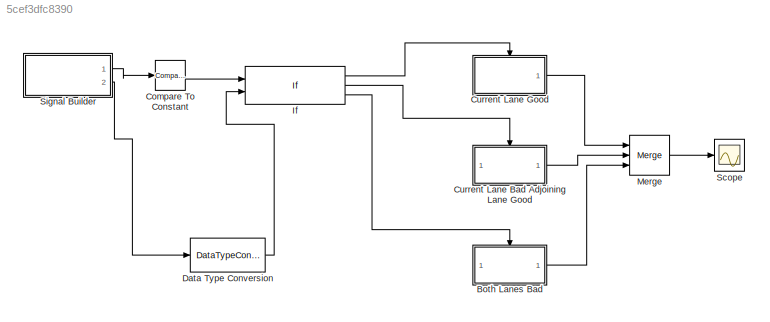
MODEL slx_5cef3dfc8390
KIND model
CONFIG AbsTol = auto
CONFIG EnableMultiTasking = off
CONFIG FixedStep = auto
CONFIG MaxStep = auto
CONFIG MinStep = auto
CONFIG RelTol = 1e-3
CONFIG SampleTimeConstraint = Unconstrained
CONFIG Solver = VariableStepAuto
CONFIG SolverName = VariableStepAuto
CONFIG StartTime = 0.0
CONFIG StopTime = 10.0
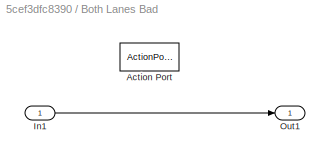
BLOCK [SubSystem] Both Lanes Bad
  Ports = [1, 1, 0, 0, 0, 0, 0, 1]
  RequestExecContextInheritance = off
  TreatAsAtomicUnit = on
  Variant = off
BLOCK [ActionPort] Both Lanes Bad/Action Port
  ActionType = else
BLOCK [Inport] Both Lanes Bad/In1
  IconDisplay = Port number
BLOCK [Outport] Both Lanes Bad/Out1
  IconDisplay = Port number
BLOCK [Reference] Compare To Constant  REF=simulink/Logic and Bit
Operations/Compare
To Constant
  Ports = [1, 1]
  SourceBlock = simulink/Logic and Bit\nOperations/Compare\nTo Constant
  SourceProductBaseCode = SL
  SourceProductName = Simulink
  SourceType = Compare To Constant
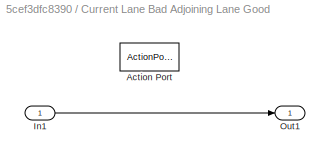
BLOCK [SubSystem] Current Lane Bad Adjoining Lane Good
  Ports = [1, 1, 0, 0, 0, 0, 0, 1]
  RequestExecContextInheritance = off
  TreatAsAtomicUnit = on
  Variant = off
BLOCK [ActionPort] Current Lane Bad Adjoining Lane Good/Action Port
  ActionType = elseif
BLOCK [Inport] Current Lane Bad Adjoining Lane Good/In1
  IconDisplay = Port number
BLOCK [Outport] Current Lane Bad Adjoining Lane Good/Out1
  IconDisplay = Port number
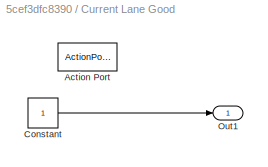
BLOCK [SubSystem] Current Lane Good
  Ports = [0, 1, 0, 0, 0, 0, 0, 1]
  RequestExecContextInheritance = off
  TreatAsAtomicUnit = on
  Variant = off
BLOCK [ActionPort] Current Lane Good/Action Port
  ActionType = then
BLOCK [Constant] Current Lane Good/Constant
BLOCK [Outport] Current Lane Good/Out1
  IconDisplay = Port number
BLOCK [DataTypeConversion] Data Type Conversion
  OutDataTypeStr = boolean
  RndMeth = Floor
  SaturateOnIntegerOverflow = off
BLOCK [If] If
  ElseIfExpressions = u2 ~= 1
  IfExpression = u1 ~= 0
  NumInputs = 2
  Ports = [2, 3]
BLOCK [Merge] Merge
  Inputs = 3
  Ports = [3, 1]
BLOCK [Scope] Scope
  NumInputPorts = 1
  Ports = [1]
  ScopeSpecificationString = Simulink.scopes.TimeScopeBlockCfg('CurrentConfiguration', extmgr.ConfigurationSet(extmgr.Configuration('Core','General UI',true),extmgr.Configuration('Core','Source UI',true),extmgr.Configuration('Sources','WiredSimulink',true),extmgr.Configuration('Visuals','Time Domain',true,'SerializedDisplays',{struct('MinYLimReal','-1.00000','MaxYLimReal','1.00000','YLabelReal','','MinYLimMag','0.00000','MaxY...<+1325ch>
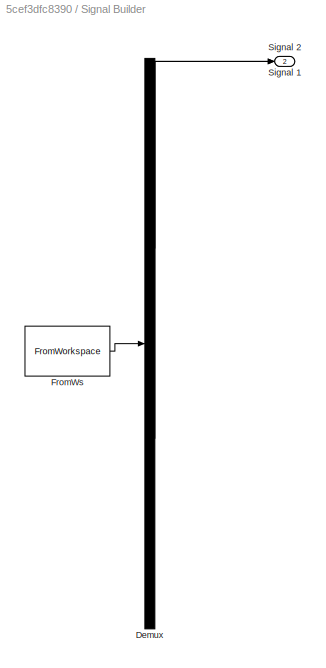
BLOCK [SubSystem] Signal Builder
  ClipboardFcn = sigbuilder_block('clipboard');
  CloseFcn = sigbuilder_block('close');
  ContinueFcn = sigbuilder_block('continue');
  CopyFcn = sigbuilder_block('copy');
  DeleteFcn = sigbuilder_block('delete');
  LoadFcn = sigbuilder_block('load');
  MaskHideContents = on
  ModelCloseFcn = sigbuilder_block('modelClose');
  NameChangeFcn = sigbuilder_block('namechange');
  OpenFcn = sigbuilder_block('open',[442.5 218.25 995.25 492 ]);
  PauseFcn = sigbuilder_block('pause');
  Ports = [0, 2]
  PreSaveFcn = sigbuilder_block('preSave');
  RequestExecContextInheritance = off
  StartFcn = sigbuilder_block('start');
  StopFcn = sigbuilder_block('stop');
  Tag = STV Subsys
  Variant = off
BLOCK [Demux] Signal Builder/Demux
  Outputs = 2
  Ports = [1, 2]
  Tag = STV Demux
BLOCK [FromWorkspace] Signal Builder/FromWs
  SampleTime = 0
  Tag = STV FromWs
  VariableName = tuvar
  ZeroCross = on
BLOCK [Outport] Signal Builder/Signal 1
  IconDisplay = Port number
  Tag = STV Outport
BLOCK [Outport] Signal Builder/Signal 2
  IconDisplay = Port number
  Port = 2
  Tag = STV Outport
LINE Both Lanes Bad/In1:1 -> Both Lanes Bad/Out1:1
LINE Both Lanes Bad:1 -> Merge:3
LINE Compare To Constant:1 -> If:1
LINE Current Lane Bad Adjoining Lane Good/In1:1 -> Current Lane Bad Adjoining Lane Good/Out1:1
LINE Current Lane Bad Adjoining Lane Good:1 -> Merge:2
LINE Current Lane Good/Constant:1 -> Current Lane Good/Out1:1
LINE Current Lane Good:1 -> Merge:1
LINE Data Type Conversion:1 -> If:2
LINE If:1 -> Current Lane Good:ifaction
LINE If:2 -> Current Lane Bad Adjoining Lane Good:ifaction
LINE If:3 -> Both Lanes Bad:ifaction
LINE Merge:1 -> Scope:1
LINE Signal Builder:1 -> Compare To Constant:1
LINE Signal Builder:2 -> Data Type Conversion:1
